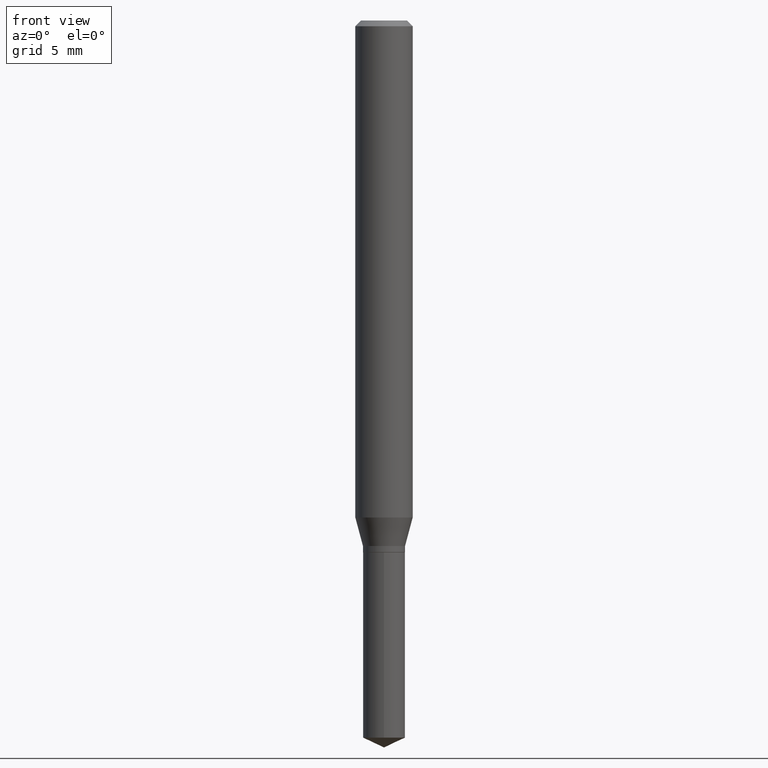
[diagram: clean part render]
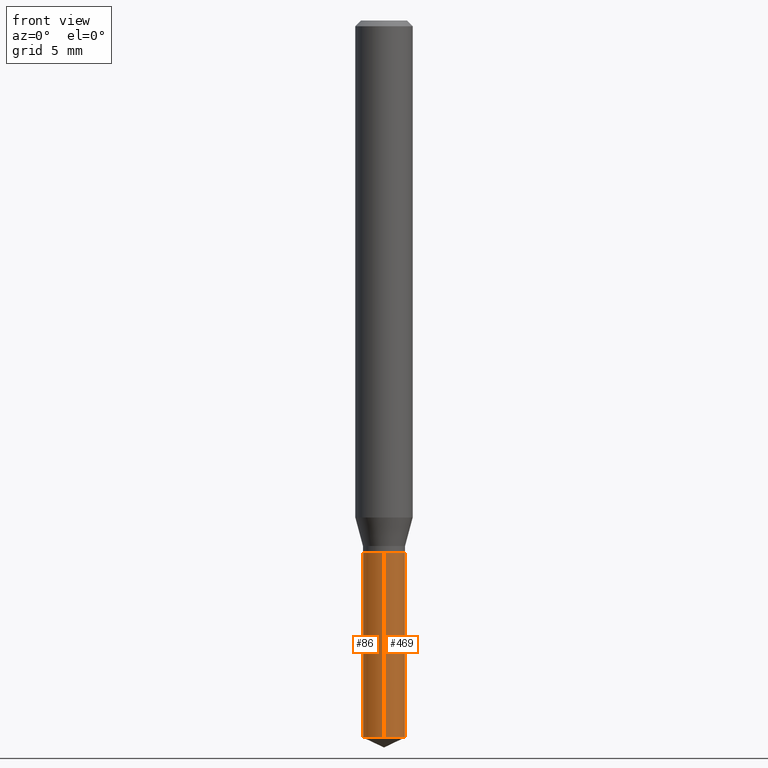
[diagram: same view with one multi-face feature highlighted, each face labeled with its STEP entity id]
A machine part, front view. The highlighted faces form ONE feature: a constant-radius fillet chain: 2 tangent blend faces with common blend radius 1.0998 mm. The faces share edges in the B-rep.
Their STEP definitions:
[1] entity #86 (Cylinder):
#22 = EDGE_CURVE ( 'NONE', #321, #462, #220, .T. ) ;
#27 = CARTESIAN_POINT ( 'NONE',  ( -3.023622839437885423E-16, -0.04330000000000382154, -1.094499999999999806 ) ) ;
#50 = AXIS2_PLACEMENT_3D ( 'NONE', #482, #323, #290 ) ;
#52 = DIRECTION ( 'NONE',  ( -2.445358326776455790E-29, 3.491639551644474585E-15, 1.000000000000000000 ) ) ;
#54 = VECTOR ( 'NONE', #175, 39.37007874015748143 ) ;
#86 = ADVANCED_FACE ( 'NONE', ( #377 ), #410, .T. ) ;
#90 = DIRECTION ( 'NONE',  ( -2.445358326776455510E-29, 3.491639551644474585E-15, 1.000000000000000000 ) ) ;
#117 = ORIENTED_EDGE ( 'NONE', *, *, #174, .F. ) ;
#125 = ORIENTED_EDGE ( 'NONE', *, *, #130, .F. ) ;
#130 = EDGE_CURVE ( 'NONE', #413, #462, #268, .T. ) ;
#132 = LINE ( 'NONE', #356, #177 ) ;
#141 = CARTESIAN_POINT ( 'NONE',  ( -3.023622839437885423E-16, -0.04330000000000382154, -1.094499999999999806 ) ) ;
#169 = CARTESIAN_POINT ( 'NONE',  ( -3.023622839437791746E-16, -0.04330000000000515381, -1.475908878401888114 ) ) ;
#174 = EDGE_CURVE ( 'NONE', #210, #413, #132, .T. ) ;
#175 = DIRECTION ( 'NONE',  ( -2.445358326776455790E-29, 3.491639551644474585E-15, 1.000000000000000000 ) ) ;
#177 = VECTOR ( 'NONE', #52, 39.37007874015748143 ) ;
#179 = DIRECTION ( 'NONE',  ( -6.982962677686265922E-15, -1.000000000000000000, 3.154558884138872662E-15 ) ) ;
#210 = VERTEX_POINT ( 'NONE', #344 ) ;
#217 = CARTESIAN_POINT ( 'NONE',  ( 2.676565608369631794E-29, -3.821426325363822773E-15, -1.094499999999999806 ) ) ;
#220 = LINE ( 'NONE', #141, #54 ) ;
#227 = CIRCLE ( 'NONE', #50, 0.04329999999999999127 ) ;
#252 = EDGE_LOOP ( 'NONE', ( #117, #258, #318, #125 ) ) ;
#258 = ORIENTED_EDGE ( 'NONE', *, *, #313, .T. ) ;
#268 = CIRCLE ( 'NONE', #384, 0.04329999999999999127 ) ;
#278 = CARTESIAN_POINT ( 'NONE',  ( 2.676565608369631794E-29, -3.821426325363822773E-15, -1.094499999999999806 ) ) ;
#283 = CARTESIAN_POINT ( 'NONE',  ( 3.076650045841594582E-16, 0.04329999999999616794, -1.094500000000000028 ) ) ;
#290 = DIRECTION ( 'NONE',  ( -6.982962677686265922E-15, -1.000000000000000000, 6.309117768277745325E-15 ) ) ;
#307 = AXIS2_PLACEMENT_3D ( 'NONE', #217, #337, #179 ) ;
#313 = EDGE_CURVE ( 'NONE', #210, #321, #227, .T. ) ;
#318 = ORIENTED_EDGE ( 'NONE', *, *, #22, .T. ) ;
#321 = VERTEX_POINT ( 'NONE', #169 ) ;
#323 = DIRECTION ( 'NONE',  ( -2.445358326776455510E-29, 3.491639551644474585E-15, 1.000000000000000000 ) ) ;
#337 = DIRECTION ( 'NONE',  ( -2.445358326776455510E-29, 3.491639551644474585E-15, 1.000000000000000000 ) ) ;
#344 = CARTESIAN_POINT ( 'NONE',  ( 3.076650045841594582E-16, 0.04329999999999483568, -1.475908878401888558 ) ) ;
#356 = CARTESIAN_POINT ( 'NONE',  ( 3.076650045841500411E-16, 0.04329999999999616794, -1.094500000000000028 ) ) ;
#377 = FACE_OUTER_BOUND ( 'NONE', #252, .T. ) ;
#384 = AXIS2_PLACEMENT_3D ( 'NONE', #278, #90, #391 ) ;
#391 = DIRECTION ( 'NONE',  ( -6.982962677686265922E-15, -1.000000000000000000, 3.154558884138872662E-15 ) ) ;
#410 = CYLINDRICAL_SURFACE ( 'NONE', #307, 0.04329999999999999127 ) ;
#413 = VERTEX_POINT ( 'NONE', #283 ) ;
#462 = VERTEX_POINT ( 'NONE', #27 ) ;
#482 = CARTESIAN_POINT ( 'NONE',  ( 3.609246985076158195E-29, -5.153168650540213844E-15, -1.475908878401888336 ) ) ;
[2] entity #469 (Cylinder):
#11 = EDGE_LOOP ( 'NONE', ( #488, #72, #357, #25 ) ) ;
#22 = EDGE_CURVE ( 'NONE', #321, #462, #220, .T. ) ;
#24 = DIRECTION ( 'NONE',  ( -2.445358326776455510E-29, 3.491639551644474585E-15, 1.000000000000000000 ) ) ;
#25 = ORIENTED_EDGE ( 'NONE', *, *, #22, .F. ) ;
#27 = CARTESIAN_POINT ( 'NONE',  ( -3.023622839437885423E-16, -0.04330000000000382154, -1.094499999999999806 ) ) ;
#52 = DIRECTION ( 'NONE',  ( -2.445358326776455790E-29, 3.491639551644474585E-15, 1.000000000000000000 ) ) ;
#54 = VECTOR ( 'NONE', #175, 39.37007874015748143 ) ;
#72 = ORIENTED_EDGE ( 'NONE', *, *, #174, .T. ) ;
#107 = CARTESIAN_POINT ( 'NONE',  ( 2.676565608369631794E-29, -3.821426325363822773E-15, -1.094499999999999806 ) ) ;
#132 = LINE ( 'NONE', #356, #177 ) ;
#141 = CARTESIAN_POINT ( 'NONE',  ( -3.023622839437885423E-16, -0.04330000000000382154, -1.094499999999999806 ) ) ;
#160 = CARTESIAN_POINT ( 'NONE',  ( 2.676565608369631794E-29, -3.821426325363822773E-15, -1.094499999999999806 ) ) ;
#169 = CARTESIAN_POINT ( 'NONE',  ( -3.023622839437791746E-16, -0.04330000000000515381, -1.475908878401888114 ) ) ;
#172 = AXIS2_PLACEMENT_3D ( 'NONE', #107, #292, #484 ) ;
#174 = EDGE_CURVE ( 'NONE', #210, #413, #132, .T. ) ;
#175 = DIRECTION ( 'NONE',  ( -2.445358326776455790E-29, 3.491639551644474585E-15, 1.000000000000000000 ) ) ;
#177 = VECTOR ( 'NONE', #52, 39.37007874015748143 ) ;
#208 = AXIS2_PLACEMENT_3D ( 'NONE', #160, #24, #365 ) ;
#210 = VERTEX_POINT ( 'NONE', #344 ) ;
#219 = CYLINDRICAL_SURFACE ( 'NONE', #172, 0.04329999999999999127 ) ;
#220 = LINE ( 'NONE', #141, #54 ) ;
#224 = CIRCLE ( 'NONE', #262, 0.04329999999999999127 ) ;
#241 = DIRECTION ( 'NONE',  ( -2.445358326776455510E-29, 3.491639551644474585E-15, 1.000000000000000000 ) ) ;
#247 = DIRECTION ( 'NONE',  ( -6.982962677686265922E-15, -1.000000000000000000, 6.309117768277745325E-15 ) ) ;
#262 = AXIS2_PLACEMENT_3D ( 'NONE', #480, #241, #247 ) ;
#283 = CARTESIAN_POINT ( 'NONE',  ( 3.076650045841594582E-16, 0.04329999999999616794, -1.094500000000000028 ) ) ;
#286 = EDGE_CURVE ( 'NONE', #462, #413, #304, .T. ) ;
#292 = DIRECTION ( 'NONE',  ( -2.445358326776455510E-29, 3.491639551644474585E-15, 1.000000000000000000 ) ) ;
#304 = CIRCLE ( 'NONE', #208, 0.04329999999999999127 ) ;
#321 = VERTEX_POINT ( 'NONE', #169 ) ;
#344 = CARTESIAN_POINT ( 'NONE',  ( 3.076650045841594582E-16, 0.04329999999999483568, -1.475908878401888558 ) ) ;
#356 = CARTESIAN_POINT ( 'NONE',  ( 3.076650045841500411E-16, 0.04329999999999616794, -1.094500000000000028 ) ) ;
#357 = ORIENTED_EDGE ( 'NONE', *, *, #286, .F. ) ;
#365 = DIRECTION ( 'NONE',  ( -6.982962677686265922E-15, -1.000000000000000000, 3.154558884138872662E-15 ) ) ;
#372 = FACE_OUTER_BOUND ( 'NONE', #11, .T. ) ;
#375 = EDGE_CURVE ( 'NONE', #321, #210, #224, .T. ) ;
#413 = VERTEX_POINT ( 'NONE', #283 ) ;
#462 = VERTEX_POINT ( 'NONE', #27 ) ;
#469 = ADVANCED_FACE ( 'NONE', ( #372 ), #219, .T. ) ;
#480 = CARTESIAN_POINT ( 'NONE',  ( 3.609246985076158195E-29, -5.153168650540213844E-15, -1.475908878401888336 ) ) ;
#484 = DIRECTION ( 'NONE',  ( -6.982962677686265922E-15, -1.000000000000000000, 3.154558884138872662E-15 ) ) ;
#488 = ORIENTED_EDGE ( 'NONE', *, *, #375, .T. ) ;